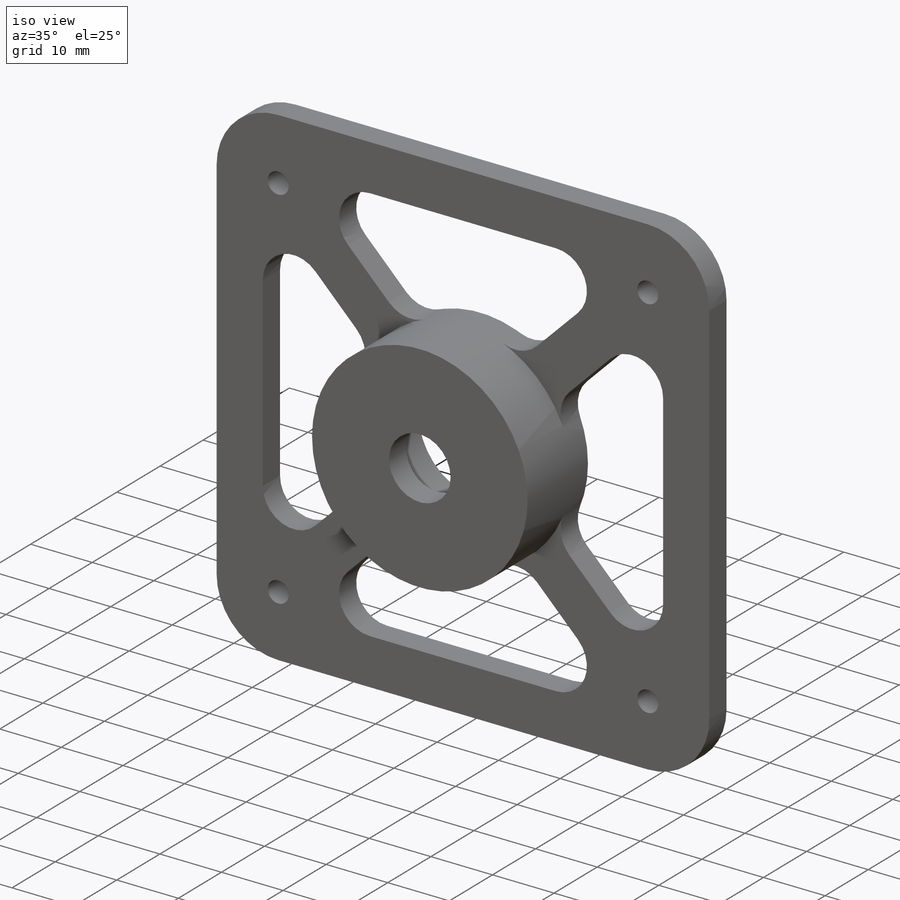
[diagram: iso view]
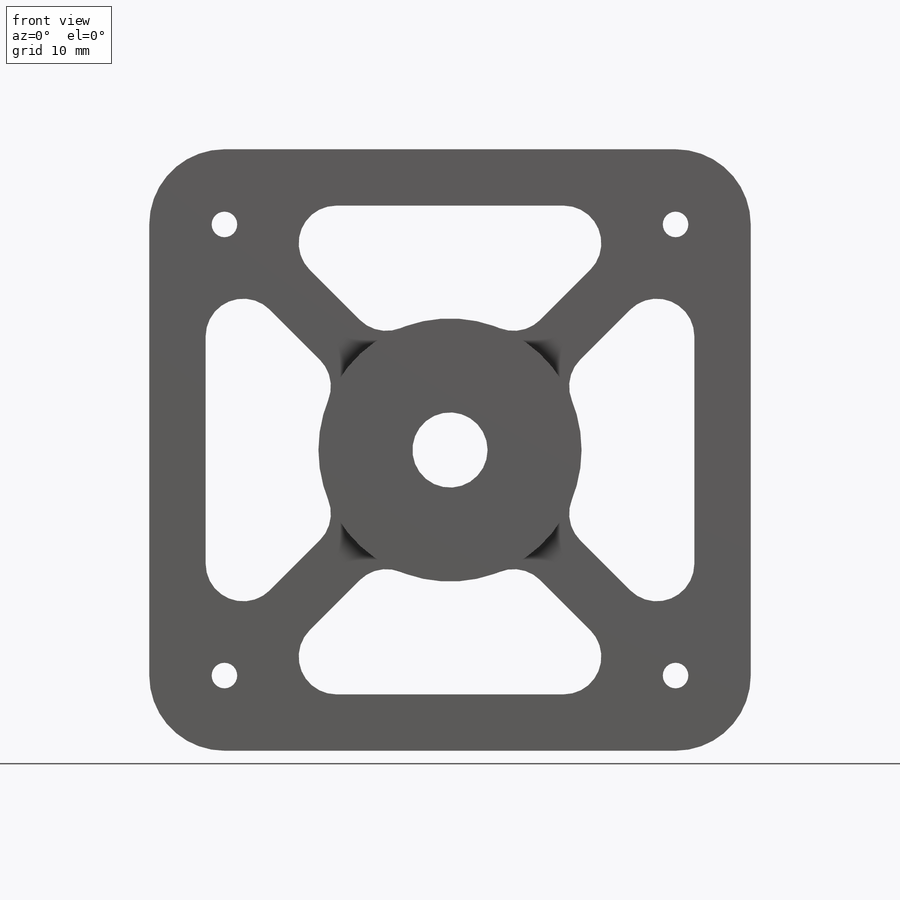
[diagram: front view]
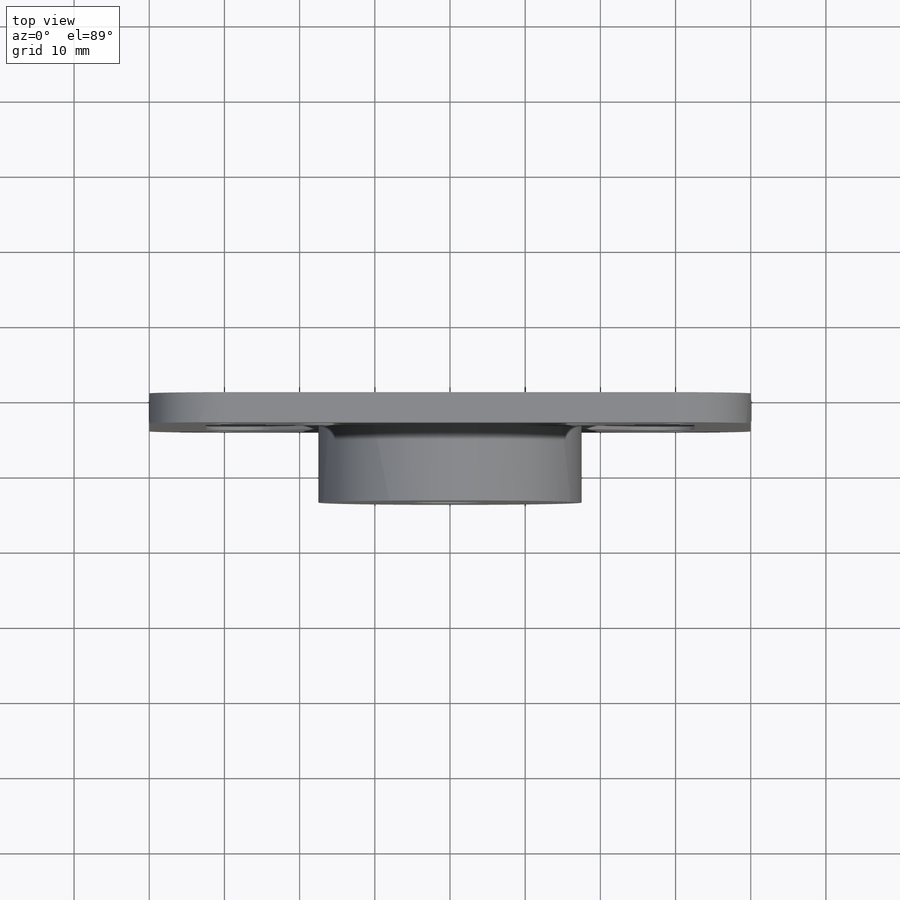
[diagram: top view]
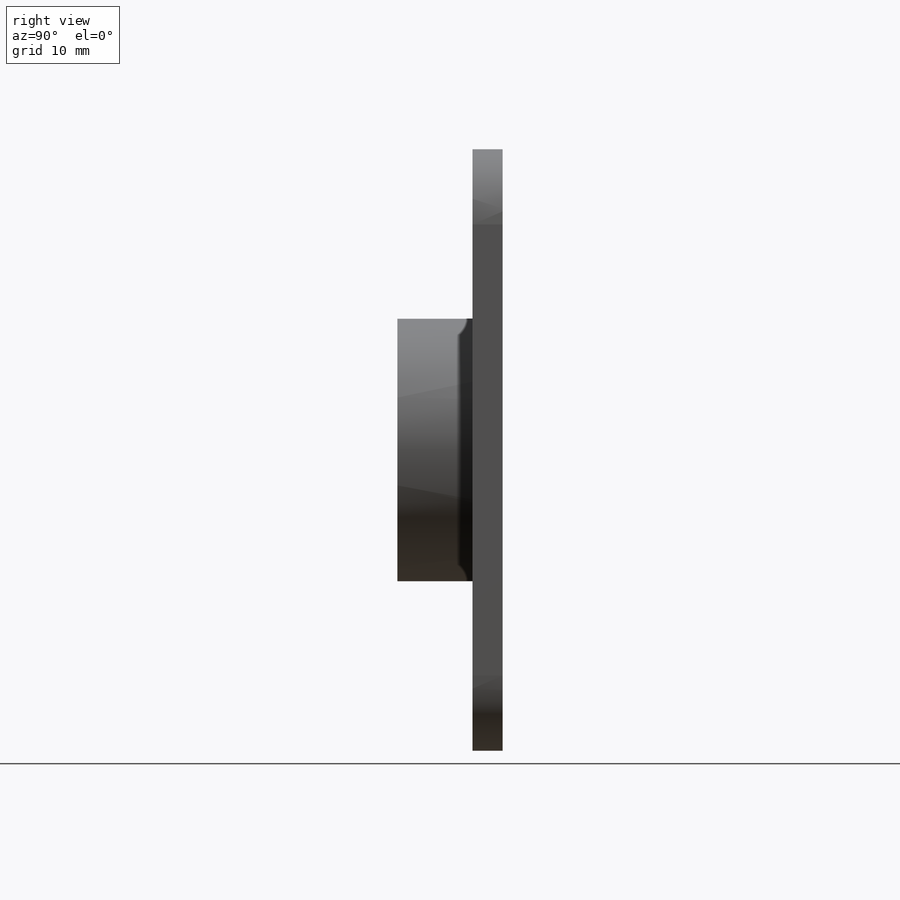
[diagram: right view]
SOLIDWORKS PART (.sldprt)
format: sldprt  version: not decoded by parser v0  size: 433,664 bytes
history: native  units: mm
features: sketch x8, cut_extrude x3, extrude x2, material x1, hole x1, fillet x1, chamfer x1 (+13 scaffold rows collapsed)
feature tree (30):
  scaffold x13  (default folders/planes/origin — collapsed)
  material  "6061 Сплав"
  sketch  "Sketch1"  dims[D1=80.0mm]
  extrude  "Boss-Extrude1"  Depth=4mm
  sketch  "Sketch2"  dims[D1=8.0mm]
  sketch  "Sketch7"  dims[c1.D1=~11.378425mm c1.D2=8.7mm c1.D4=5.0mm c2.D2=15.5mm c2.D1=7.5mm c3.D2=7.5mm c3.D3=7.5mm c3.D5=7.5mm c4.D2=7.5mm c4.D5=~25.980458mm c4.D3=7.5mm c5.D2=7.5mm]
  cut_extrude  "Cut-Extrude3"  [1 undecoded]
  sketch  "Sketch8"
  extrude  "Boss-Extrude2"  Depth=10mm
  sketch  "Sketch3"  dims[D1=60.0mm]
  hole  "M3 Clearance Hole1"  Diameter=3.4mm Depth=4mm
  sketch  "Sketch5"
  sketch  "Sketch6"  dims[hole-wizard template sketch: 60 standard entries collapsed; hole parameters kept: c18.Thru Hole Depth=4.0mm]
  fillet  "Fillet1"  Radius=10mm
  cut_extrude  "Cut-Extrude4"  Depth=10mm
  sketch  "Sketch9"  dims[D1=8.0mm]
  cut_extrude  "Cut-Extrude5"  [1 undecoded]
  chamfer  "Chamfer5"  Distance=0.5mm Angle=45deg
decode coverage: 12 of 16 modeling features carry decoded parameters
note: ~ marks probable driven/reference dimensions
note: 2 parameter values undecoded
note: suppression state not decoded; provenance and decode notes live in map.json
